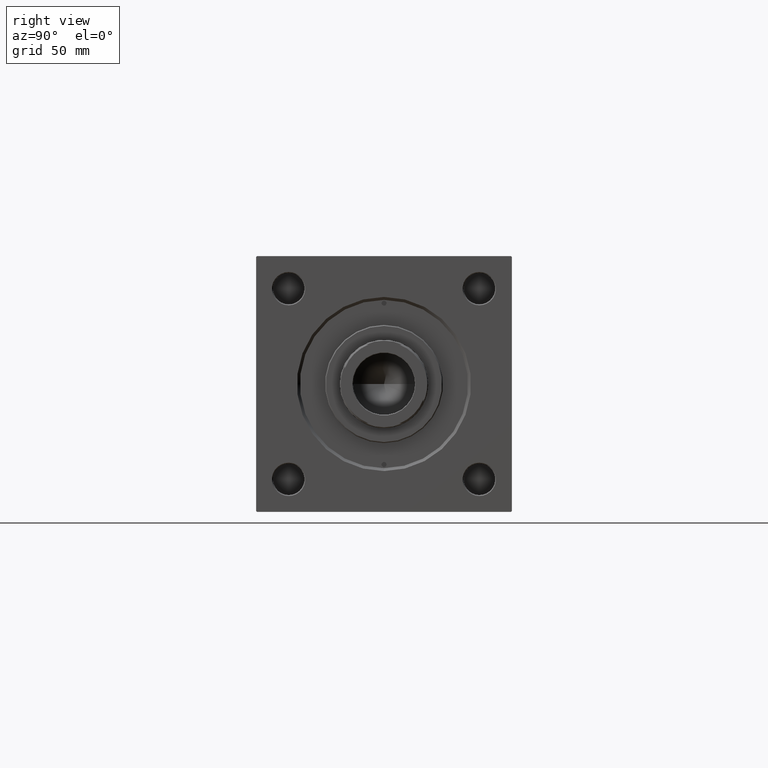
[diagram: clean part render]
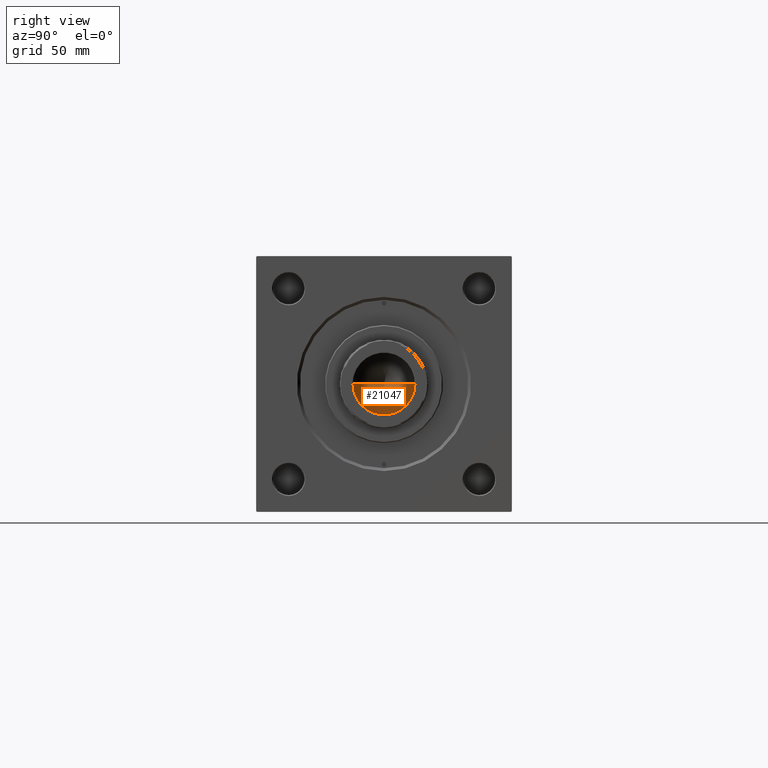
[diagram: same view with one face highlighted and labeled with its STEP entity id]
A machine part, right view. The second image highlights one B-rep face of the part: STEP entity #21047.
In plain terms, the highlighted conical surface has half-angle 59 deg.
Its self-contained STEP definition (entity closure, byte-faithful):
#50 = DIRECTION ( 'NONE',  ( -0.000000000000000000, -0.000000000000000000, 1.000000000000000000 ) ) ;
#908 = VECTOR ( 'NONE', #11456, 1000.000000000000000 ) ;
#1100 = ORIENTED_EDGE ( 'NONE', *, *, #36910, .T. ) ;
#1540 = CIRCLE ( 'NONE', #38472, 15.74999999999998934 ) ;
#2979 = CARTESIAN_POINT ( 'NONE',  ( -15.74999999999998934, 1.928818708657080161E-15, 203.0000000000000000 ) ) ;
#3254 = EDGE_CURVE ( 'NONE', #19038, #43827, #27272, .T. ) ;
#3482 = CARTESIAN_POINT ( 'NONE',  ( 15.74999999999998934, 0.000000000000000000, 203.0000000000000000 ) ) ;
#4059 = CARTESIAN_POINT ( 'NONE',  ( 15.74999999999998934, 0.000000000000000000, 203.0000000000000000 ) ) ;
#8319 = DIRECTION ( 'NONE',  ( -0.000000000000000000, -0.000000000000000000, 1.000000000000000000 ) ) ;
#8952 = CONICAL_SURFACE ( 'NONE', #37658, 15.74999999999998934, 1.029744258676652313 ) ;
#11456 = DIRECTION ( 'NONE',  ( 0.8571673007021112234, 0.000000000000000000, 0.5150380749100560429 ) ) ;
#15196 = DIRECTION ( 'NONE',  ( -0.8571673007021112234, 1.049727191138617340E-16, 0.5150380749100560429 ) ) ;
#15470 = DIRECTION ( 'NONE',  ( 1.000000000000000000, 0.000000000000000000, 0.000000000000000000 ) ) ;
#15795 = CARTESIAN_POINT ( 'NONE',  ( 0.000000000000000000, 0.000000000000000000, 203.0000000000000000 ) ) ;
#17053 = ORIENTED_EDGE ( 'NONE', *, *, #20811, .T. ) ;
#19038 = VERTEX_POINT ( 'NONE', #39851 ) ;
#20811 = EDGE_CURVE ( 'NONE', #43699, #43827, #1540, .T. ) ;
#21047 = ADVANCED_FACE ( 'NONE', ( #39110 ), #8952, .F. ) ;
#24488 = ORIENTED_EDGE ( 'NONE', *, *, #3254, .F. ) ;
#27272 = LINE ( 'NONE', #47046, #32262 ) ;
#30980 = LINE ( 'NONE', #3482, #908 ) ;
#31199 = DIRECTION ( 'NONE',  ( 1.000000000000000000, 0.000000000000000000, 0.000000000000000000 ) ) ;
#32262 = VECTOR ( 'NONE', #15196, 1000.000000000000000 ) ;
#36910 = EDGE_CURVE ( 'NONE', #19038, #43699, #30980, .T. ) ;
#37658 = AXIS2_PLACEMENT_3D ( 'NONE', #39879, #50, #15470 ) ;
#38472 = AXIS2_PLACEMENT_3D ( 'NONE', #15795, #8319, #31199 ) ;
#39110 = FACE_OUTER_BOUND ( 'NONE', #42948, .T. ) ;
#39851 = CARTESIAN_POINT ( 'NONE',  ( -1.584115414415908206E-14, 0.000000000000000000, 193.5364452503159214 ) ) ;
#39879 = CARTESIAN_POINT ( 'NONE',  ( 0.000000000000000000, 0.000000000000000000, 203.0000000000000000 ) ) ;
#42948 = EDGE_LOOP ( 'NONE', ( #24488, #1100, #17053 ) ) ;
#43699 = VERTEX_POINT ( 'NONE', #4059 ) ;
#43827 = VERTEX_POINT ( 'NONE', #2979 ) ;
#47046 = CARTESIAN_POINT ( 'NONE',  ( -15.74999999999998934, 1.928818708657080161E-15, 203.0000000000000000 ) ) ;